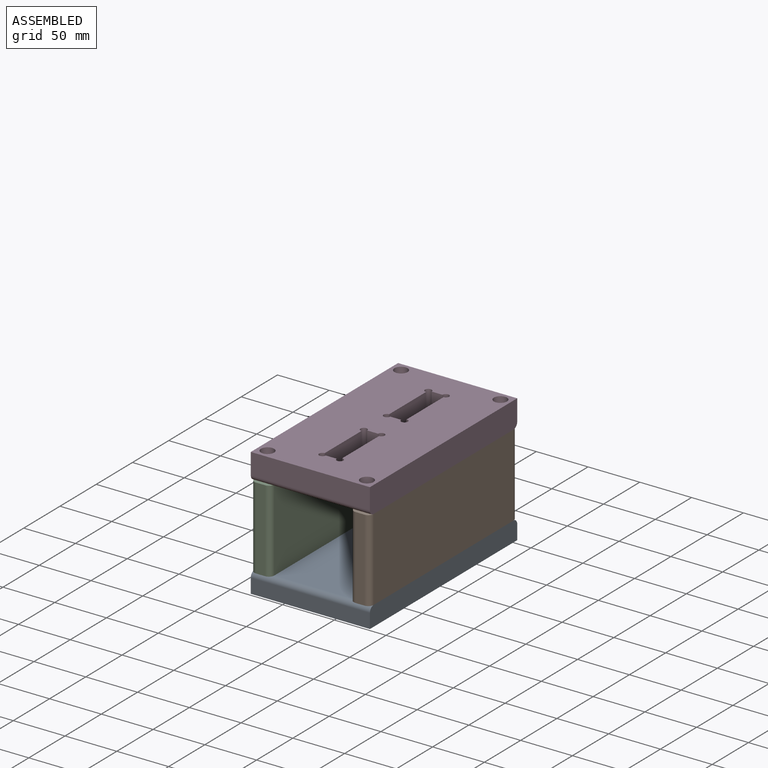
[diagram: assembled view]
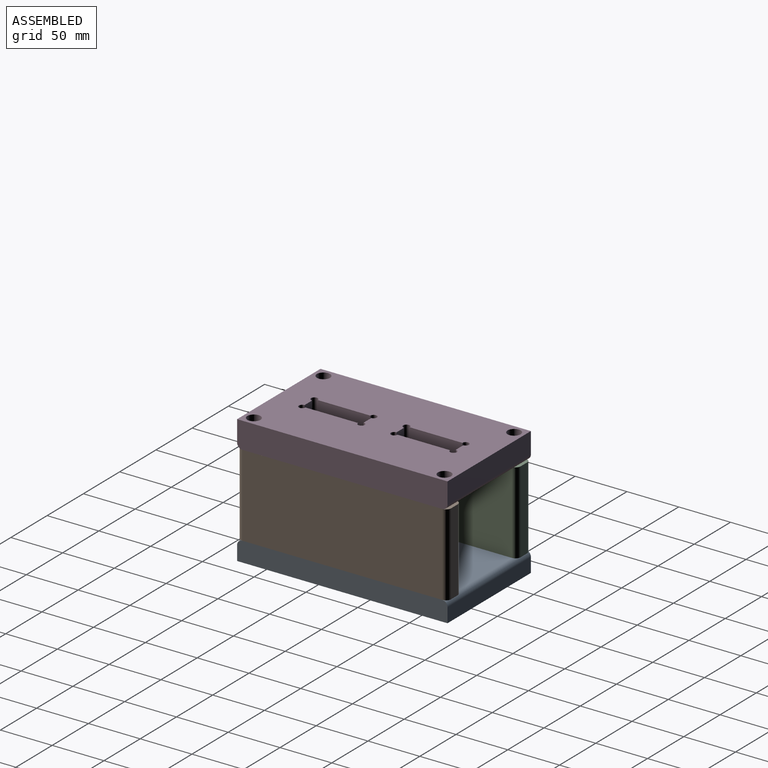
[diagram: assembled view, second angle]
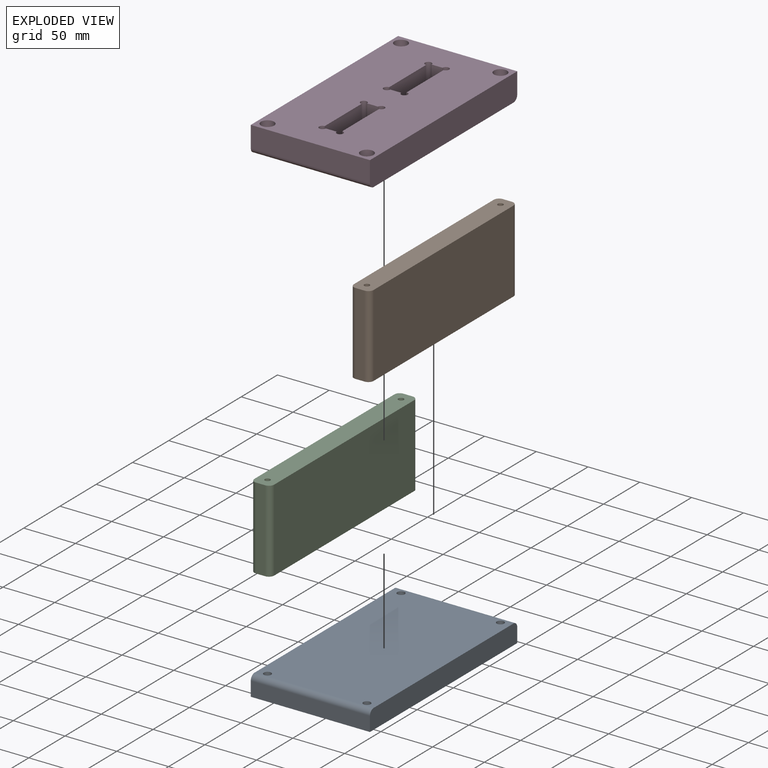
[diagram: exploded view]
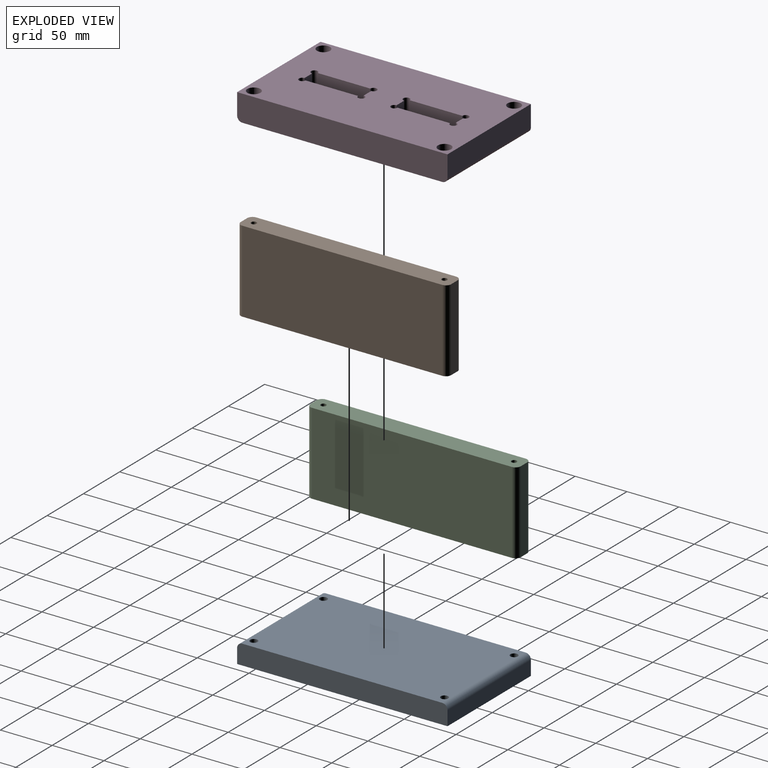
[diagram: exploded view, second angle]
ASSEMBLY  parts=4 mates=3
PART A: 20 faces, bbox 115.1x203.2x19.1 mm
  f0: cylinder r=3.57mm len=7.14mm, axis (0,0,-1), area 142.4mm2, adj f8,f17
  f1: cylinder r=3.57mm len=7.14mm, axis (0,0,-1), area 142.5mm2, adj f8,f15
  f2: cylinder r=3.57mm len=7.14mm, axis (0,0,-1), area 142.4mm2, adj f8,f13
  f3: cylinder r=3.57mm len=7.14mm, axis (0,0,-1), area 142.4mm2, adj f8,f11
  f4: plane 115.06x13.97mm, normal (0,1,0), area 1607.4mm2, adj f5,f7,f9,f19
  f5: plane 203.2x19.05mm, normal (-1,0,0), area 3859.9mm2, adj f4,f6,f8,f9,f18,f19
  f6: plane 115.06x13.97mm, normal (0,-1,0), area 1607.4mm2, adj f5,f7,f9,f18
  f7: plane 203.2x19.05mm, normal (1,0,0), area 3859.9mm2, adj f4,f6,f8,f9,f18,f19
  f8: plane 193.04x115.06mm, normal (0,0,1), area 22051.5mm2, adj f0,f1,f2,f3,f5,f7,f18,f19
  f9: plane 203.2x115.06mm, normal (0,0,-1), area 22873.9mm2, adj f4,f5,f6,f7,f10,f12,f14,f16
  f10: cylinder r=6.35mm len=12.7mm, axis (0,0,-1), area 506.7mm2, adj f9,f11
  f11: plane 12.7x12.7mm, normal (0,0,-1), area 86.7mm2, adj f3,f10
  f12: cylinder r=6.35mm len=12.7mm, axis (0,0,-1), area 506.7mm2, adj f9,f13
  f13: plane 12.7x12.7mm, normal (0,0,-1), area 86.7mm2, adj f2,f12
  f14: cylinder r=6.35mm len=12.7mm, axis (0,0,-1), area 506.7mm2, adj f9,f15
  f15: plane 12.7x12.7mm, normal (0,0,-1), area 86.6mm2, adj f1,f14
  f16: cylinder r=6.35mm len=12.7mm, axis (0,0,-1), area 506.7mm2, adj f9,f17
  f17: plane 12.7x12.7mm, normal (0,0,-1), area 86.7mm2, adj f0,f16
  f18: cylinder r=5.08mm len=115.06mm, axis (-1,0,0), area 918.2mm2, adj f5,f6,f7,f8
  f19: cylinder r=5.08mm len=115.06mm, axis (1,0,0), area 918.2mm2, adj f4,f5,f7,f8
PART B: 12 faces, bbox 203.2x19.1x79.4 mm
  f0: plane 203.2x19.05mm, normal (0,0,-1), area 3807mm2, adj f1,f3,f4,f5,f6,f7,f8,f9
  f1: plane 79.38x8.89mm, normal (1,0,0), area 705.6mm2, adj f0,f2,f8,f10
  f2: plane 203.2x19.05mm, normal (0,0,1), area 3807mm2, adj f1,f3,f4,f5,f6,f7,f8,f9
  f3: plane 79.38x8.89mm, normal (-1,0,0), area 705.6mm2, adj f0,f2,f9,f11
  f4: plane 193.04x79.38mm, normal (0,-1,0), area 15322.5mm2, adj f0,f2,f10,f11
  f5: plane 193.04x79.38mm, normal (0,1,0), area 15322.5mm2, adj f0,f2,f8,f9
  f6: cylinder r=2.58mm len=79.38mm, axis (0,0,1), area 1285.8mm2, adj f0,f2
  f7: cylinder r=2.58mm len=79.38mm, axis (0,0,1), area 1285.8mm2, adj f0,f2
  f8: cylinder r=5.08mm len=79.38mm, axis (0,0,1), area 633.4mm2, adj f0,f1,f2,f5
  f9: cylinder r=5.08mm len=79.38mm, axis (0,0,-1), area 633.4mm2, adj f0,f2,f3,f5
  f10: cylinder r=5.08mm len=79.38mm, axis (0,0,-1), area 633.4mm2, adj f0,f1,f2,f4
  f11: cylinder r=5.08mm len=79.38mm, axis (0,0,1), area 633.4mm2, adj f0,f2,f3,f4
PART C: same geometry as B
PART D: 36 faces, bbox 115.1x203.2x25.4 mm
  f0: cylinder r=3.57mm len=12.7mm, axis (0,0,-1), area 284.8mm2, adj f17,f25
  f1: cylinder r=3.57mm len=12.7mm, axis (0,0,-1), area 284.8mm2, adj f17,f23
  f2: cylinder r=3.57mm len=12.7mm, axis (0,0,-1), area 285mm2, adj f17,f21
  f3: cylinder r=3.57mm len=12.7mm, axis (0,0,-1), area 284.8mm2, adj f17,f19
  f4: plane 50.8x25.4mm, normal (-1,0,0), area 1290.3mm2, adj f16,f17,f26,f33
  f5: plane 25.4x10.54mm, normal (0,1,0), area 267.7mm2, adj f16,f17,f32,f33
  f6: plane 50.8x25.4mm, normal (1,0,0), area 1290.3mm2, adj f16,f17,f27,f32
  f7: plane 50.8x25.4mm, normal (-1,0,0), area 1290.3mm2, adj f16,f17,f29,f31
  f8: plane 25.4x10.54mm, normal (0,1,0), area 267.7mm2, adj f16,f17,f30,f31
  f9: plane 50.8x25.4mm, normal (1,0,0), area 1290.3mm2, adj f16,f17,f28,f30
  f10: plane 115.06x20.32mm, normal (0,1,0), area 2338.1mm2, adj f11,f14,f16,f35
  f11: plane 203.2x25.4mm, normal (-1,0,0), area 5150.2mm2, adj f10,f12,f16,f17,f34,f35
  f12: plane 115.06x20.32mm, normal (0,-1,0), area 2338.1mm2, adj f11,f14,f16,f34
  f13: plane 25.4x10.54mm, normal (0,-1,0), area 267.7mm2, adj f16,f17,f28,f29
  f14: plane 203.2x25.4mm, normal (1,0,0), area 5150.2mm2, adj f10,f12,f16,f17,f34,f35
  f15: plane 25.4x10.54mm, normal (0,-1,0), area 267.7mm2, adj f16,f17,f26,f27
  f16: plane 203.2x115.06mm, normal (0,0,1), area 20753.2mm2, adj f4,f5,f6,f7,f8,f9,f10,f11
  f17: plane 193.04x115.06mm, normal (0,0,-1), area 19930.8mm2, adj f0,f1,f2,f3,f4,f5,f6,f7
  f18: cylinder r=6.35mm len=12.7mm, axis (0,0,1), area 506.7mm2, adj f16,f19
  f19: plane 12.7x12.7mm, normal (0,0,1), area 86.7mm2, adj f3,f18
  f20: cylinder r=6.35mm len=12.7mm, axis (0,0,1), area 506.7mm2, adj f16,f21
  f21: plane 12.7x12.7mm, normal (0,0,1), area 86.6mm2, adj f2,f20
  f22: cylinder r=6.35mm len=12.7mm, axis (0,0,1), area 506.7mm2, adj f16,f23
  f23: plane 12.7x12.7mm, normal (0,0,1), area 86.7mm2, adj f1,f22
  f24: cylinder r=6.35mm len=12.7mm, axis (0,0,1), area 506.7mm2, adj f16,f25
  f25: plane 12.7x12.7mm, normal (0,0,1), area 86.7mm2, adj f0,f24
  f26: cylinder r=3.17mm len=25.4mm, axis (0,0,1), area 380mm2, adj f4,f15,f16,f17
  f27: cylinder r=3.17mm len=25.4mm, axis (0,0,1), area 380mm2, adj f6,f15,f16,f17
  f28: cylinder r=3.17mm len=25.4mm, axis (0,0,1), area 380mm2, adj f9,f13,f16,f17
  f29: cylinder r=3.17mm len=25.4mm, axis (0,0,1), area 380mm2, adj f7,f13,f16,f17
  f30: cylinder r=3.17mm len=25.4mm, axis (0,0,1), area 380mm2, adj f8,f9,f16,f17
  f31: cylinder r=3.17mm len=25.4mm, axis (0,0,1), area 380mm2, adj f7,f8,f16,f17
  f32: cylinder r=3.17mm len=25.4mm, axis (0,0,1), area 380mm2, adj f5,f6,f16,f17
  f33: cylinder r=3.17mm len=25.4mm, axis (0,0,1), area 380mm2, adj f4,f5,f16,f17
  f34: cylinder r=5.08mm len=115.06mm, axis (1,0,0), area 918.2mm2, adj f11,f12,f14,f17
  f35: cylinder r=5.08mm len=115.06mm, axis (-1,0,0), area 918.2mm2, adj f10,f11,f14,f17
PLACE A t=(-9.26,-11,-20.19)mm
PLACE B rot(axis=(0,0,-1),90deg) t=(48.27,-11,38.55)mm
PLACE C rot(axis=(0,0,-1),90deg) t=(-47.74,-11,38.55)mm
PLACE D t=(-9.26,-11,78.24)mm
MATE revolute C.f7 <-> A.f1  axis (0,0,-1) through (-57.26,81.08,-1.14)mm
MATE revolute B.f6 <-> A.f0  axis (0,0,-1) through (38.75,-103.07,-1.14)mm
MATE revolute D.f3 <-> B.f7  axis (0,0,-1) through (38.75,81.08,78.24)mm
